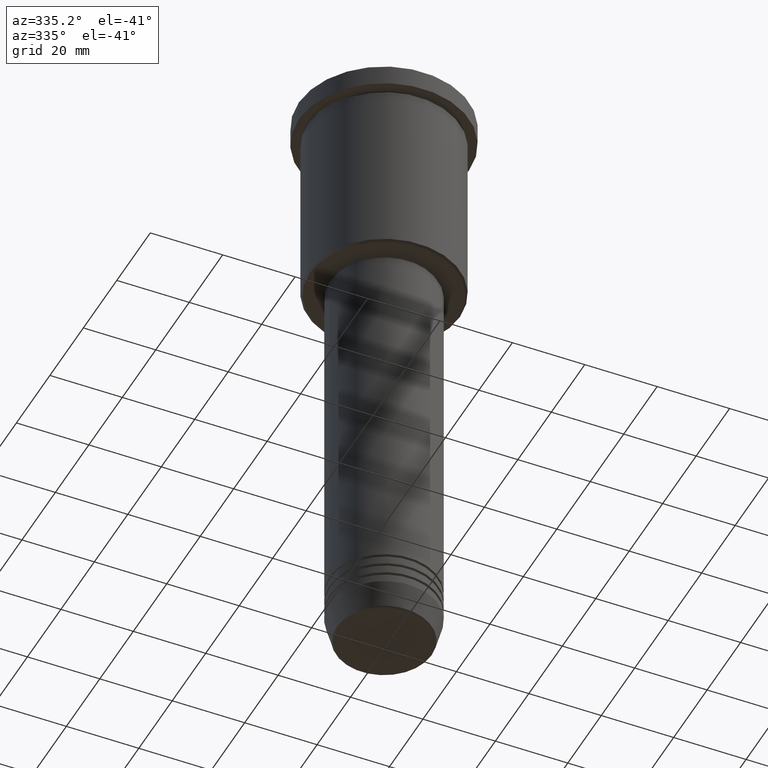
[diagram: clean part render]
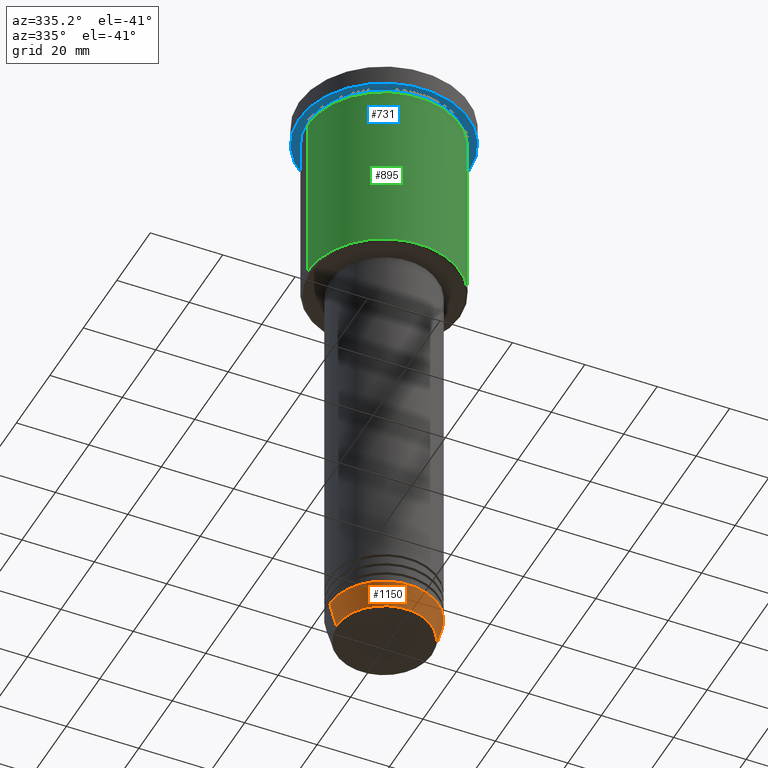
[diagram: same view with three faces highlighted in distinct colors, each labeled with its STEP entity id]
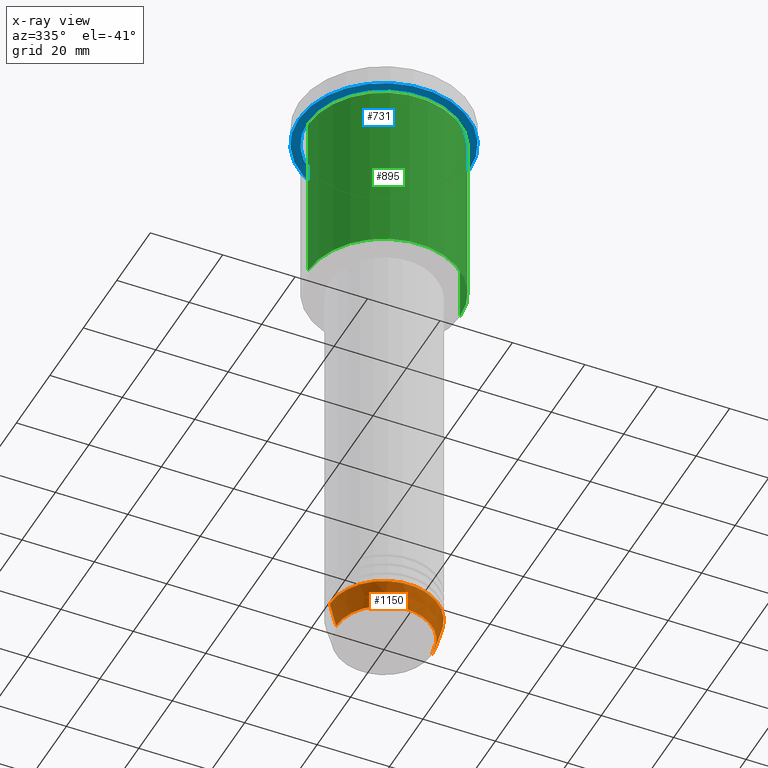
[diagram: x-ray of the same camera — body ghosted, the three highlighted faces saturated]
A machine part, auxiliary view with three faces highlighted in distinct colors.
The next image is the same camera in x-ray (body ghosted, the three faces saturated) — at least one of them is partly hidden behind the body in this view.
Their STEP definitions:

[orange] entity #1150 — the highlighted conical surface has half-angle 15 deg.
#76 = CARTESIAN_POINT ( 'NONE',  ( 15.00000000000000000, 0.000000000000000000, -164.0000000000000000 ) ) ;
#86 = FACE_OUTER_BOUND ( 'NONE', #392, .T. ) ;
#95 = DIRECTION ( 'NONE',  ( -0.000000000000000000, -0.000000000000000000, 1.000000000000000000 ) ) ;
#118 = DIRECTION ( 'NONE',  ( 0.2588190451025213501, 0.000000000000000000, 0.9659258262890680902 ) ) ;
#172 = CARTESIAN_POINT ( 'NONE',  ( -15.00000000000000000, 1.836970198721029589E-15, -164.0000000000000000 ) ) ;
#291 = VERTEX_POINT ( 'NONE', #346 ) ;
#297 = LINE ( 'NONE', #1031, #351 ) ;
#299 = VERTEX_POINT ( 'NONE', #172 ) ;
#316 = AXIS2_PLACEMENT_3D ( 'NONE', #908, #95, #809 ) ;
#323 = ORIENTED_EDGE ( 'NONE', *, *, #373, .F. ) ;
#346 = CARTESIAN_POINT ( 'NONE',  ( 13.22365507213719305, 0.000000000000000000, -170.6294095225512422 ) ) ;
#351 = VECTOR ( 'NONE', #118, 1000.000000000000000 ) ;
#358 = EDGE_CURVE ( 'NONE', #979, #291, #1074, .T. ) ;
#369 = DIRECTION ( 'NONE',  ( -0.000000000000000000, -0.000000000000000000, 1.000000000000000000 ) ) ;
#373 = EDGE_CURVE ( 'NONE', #299, #1123, #984, .T. ) ;
#392 = EDGE_LOOP ( 'NONE', ( #456, #1003, #490, #323 ) ) ;
#394 = VECTOR ( 'NONE', #655, 1000.000000000000000 ) ;
#456 = ORIENTED_EDGE ( 'NONE', *, *, #870, .F. ) ;
#490 = ORIENTED_EDGE ( 'NONE', *, *, #516, .T. ) ;
#516 = EDGE_CURVE ( 'NONE', #291, #1123, #297, .T. ) ;
#525 = AXIS2_PLACEMENT_3D ( 'NONE', #704, #1065, #611 ) ;
#577 = CARTESIAN_POINT ( 'NONE',  ( 0.000000000000000000, 0.000000000000000000, -164.0000000000000000 ) ) ;
#599 = CARTESIAN_POINT ( 'NONE',  ( -13.22365507213719305, 1.728200442216588583E-15, -170.6294095225512422 ) ) ;
#611 = DIRECTION ( 'NONE',  ( 1.000000000000000000, 0.000000000000000000, 0.000000000000000000 ) ) ;
#651 = DIRECTION ( 'NONE',  ( 1.000000000000000000, 0.000000000000000000, 0.000000000000000000 ) ) ;
#655 = DIRECTION ( 'NONE',  ( -0.2588190451025213501, 3.169619151431772337E-17, 0.9659258262890680902 ) ) ;
#704 = CARTESIAN_POINT ( 'NONE',  ( 0.000000000000000000, 0.000000000000000000, -170.6294095225512422 ) ) ;
#794 = AXIS2_PLACEMENT_3D ( 'NONE', #577, #369, #651 ) ;
#809 = DIRECTION ( 'NONE',  ( 1.000000000000000000, 0.000000000000000000, 0.000000000000000000 ) ) ;
#834 = CONICAL_SURFACE ( 'NONE', #316, 15.00000000000000000, 0.2617993877991500740 ) ;
#870 = EDGE_CURVE ( 'NONE', #979, #299, #955, .T. ) ;
#908 = CARTESIAN_POINT ( 'NONE',  ( 0.000000000000000000, 0.000000000000000000, -164.0000000000000000 ) ) ;
#955 = LINE ( 'NONE', #1115, #394 ) ;
#979 = VERTEX_POINT ( 'NONE', #599 ) ;
#984 = CIRCLE ( 'NONE', #794, 15.00000000000000000 ) ;
#1003 = ORIENTED_EDGE ( 'NONE', *, *, #358, .T. ) ;
#1031 = CARTESIAN_POINT ( 'NONE',  ( 15.00000000000000000, 0.000000000000000000, -164.0000000000000000 ) ) ;
#1065 = DIRECTION ( 'NONE',  ( -0.000000000000000000, -0.000000000000000000, 1.000000000000000000 ) ) ;
#1074 = CIRCLE ( 'NONE', #525, 13.22365507213719305 ) ;
#1115 = CARTESIAN_POINT ( 'NONE',  ( -15.00000000000000000, 1.836970198721029589E-15, -164.0000000000000000 ) ) ;
#1123 = VERTEX_POINT ( 'NONE', #76 ) ;
#1150 = ADVANCED_FACE ( 'NONE', ( #86 ), #834, .T. ) ;

[blue] entity #731 — the highlighted planar face has unit normal (0, 0, -1).
#28 = EDGE_CURVE ( 'NONE', #867, #502, #252, .T. ) ;
#31 = AXIS2_PLACEMENT_3D ( 'NONE', #1071, #157, #528 ) ;
#48 = CIRCLE ( 'NONE', #1097, 21.00000000000000000 ) ;
#132 = VERTEX_POINT ( 'NONE', #686 ) ;
#150 = DIRECTION ( 'NONE',  ( 1.000000000000000000, 0.000000000000000000, 0.000000000000000000 ) ) ;
#157 = DIRECTION ( 'NONE',  ( -0.000000000000000000, -0.000000000000000000, 1.000000000000000000 ) ) ;
#160 = AXIS2_PLACEMENT_3D ( 'NONE', #261, #266, #637 ) ;
#168 = ORIENTED_EDGE ( 'NONE', *, *, #861, .F. ) ;
#236 = CIRCLE ( 'NONE', #698, 23.50000000000000000 ) ;
#252 = CIRCLE ( 'NONE', #756, 23.50000000000000000 ) ;
#261 = CARTESIAN_POINT ( 'NONE',  ( 0.000000000000000000, 23.50000000000000000, -5.999999999999994671 ) ) ;
#266 = DIRECTION ( 'NONE',  ( 0.000000000000000000, 0.000000000000000000, -1.000000000000000000 ) ) ;
#328 = EDGE_LOOP ( 'NONE', ( #882, #859 ) ) ;
#363 = FACE_BOUND ( 'NONE', #328, .T. ) ;
#367 = DIRECTION ( 'NONE',  ( -1.000000000000000000, 0.000000000000000000, 0.000000000000000000 ) ) ;
#447 = PLANE ( 'NONE',  #160 ) ;
#475 = DIRECTION ( 'NONE',  ( -0.000000000000000000, -0.000000000000000000, 1.000000000000000000 ) ) ;
#502 = VERTEX_POINT ( 'NONE', #1026 ) ;
#524 = CARTESIAN_POINT ( 'NONE',  ( 21.00000000000000000, 2.571758278209441661E-15, -5.999999999999994671 ) ) ;
#528 = DIRECTION ( 'NONE',  ( -1.000000000000000000, 0.000000000000000000, 0.000000000000000000 ) ) ;
#545 = CIRCLE ( 'NONE', #31, 21.00000000000000000 ) ;
#637 = DIRECTION ( 'NONE',  ( -1.000000000000000000, 0.000000000000000000, -0.000000000000000000 ) ) ;
#660 = EDGE_CURVE ( 'NONE', #1028, #132, #545, .T. ) ;
#682 = EDGE_CURVE ( 'NONE', #132, #1028, #48, .T. ) ;
#686 = CARTESIAN_POINT ( 'NONE',  ( -21.00000000000000000, 0.000000000000000000, -5.999999999999994671 ) ) ;
#698 = AXIS2_PLACEMENT_3D ( 'NONE', #1124, #475, #755 ) ;
#731 = ADVANCED_FACE ( 'NONE', ( #363, #825 ), #447, .T. ) ;
#755 = DIRECTION ( 'NONE',  ( 1.000000000000000000, 0.000000000000000000, 0.000000000000000000 ) ) ;
#756 = AXIS2_PLACEMENT_3D ( 'NONE', #863, #872, #150 ) ;
#825 = FACE_OUTER_BOUND ( 'NONE', #940, .T. ) ;
#859 = ORIENTED_EDGE ( 'NONE', *, *, #660, .T. ) ;
#861 = EDGE_CURVE ( 'NONE', #502, #867, #236, .T. ) ;
#863 = CARTESIAN_POINT ( 'NONE',  ( 0.000000000000000000, 0.000000000000000000, -5.999999999999994671 ) ) ;
#867 = VERTEX_POINT ( 'NONE', #936 ) ;
#872 = DIRECTION ( 'NONE',  ( -0.000000000000000000, -0.000000000000000000, 1.000000000000000000 ) ) ;
#882 = ORIENTED_EDGE ( 'NONE', *, *, #682, .T. ) ;
#917 = CARTESIAN_POINT ( 'NONE',  ( 0.000000000000000000, 0.000000000000000000, -5.999999999999994671 ) ) ;
#936 = CARTESIAN_POINT ( 'NONE',  ( -23.50000000000000000, 2.877919977996280320E-15, -5.999999999999994671 ) ) ;
#940 = EDGE_LOOP ( 'NONE', ( #168, #1141 ) ) ;
#1006 = DIRECTION ( 'NONE',  ( -0.000000000000000000, -0.000000000000000000, 1.000000000000000000 ) ) ;
#1026 = CARTESIAN_POINT ( 'NONE',  ( 23.50000000000000000, 0.000000000000000000, -5.999999999999994671 ) ) ;
#1028 = VERTEX_POINT ( 'NONE', #524 ) ;
#1071 = CARTESIAN_POINT ( 'NONE',  ( 0.000000000000000000, 0.000000000000000000, -5.999999999999994671 ) ) ;
#1097 = AXIS2_PLACEMENT_3D ( 'NONE', #917, #1006, #367 ) ;
#1124 = CARTESIAN_POINT ( 'NONE',  ( 0.000000000000000000, 0.000000000000000000, -5.999999999999994671 ) ) ;
#1141 = ORIENTED_EDGE ( 'NONE', *, *, #28, .F. ) ;

[green] entity #895 — the highlighted cylindrical surface (partial cylindrical patch) has radius 21 mm, axis along (-0, -0, 1).
#121 = AXIS2_PLACEMENT_3D ( 'NONE', #981, #495, #976 ) ;
#175 = EDGE_CURVE ( 'NONE', #777, #519, #1049, .T. ) ;
#189 = DIRECTION ( 'NONE',  ( -1.000000000000000000, 0.000000000000000000, 0.000000000000000000 ) ) ;
#223 = CIRCLE ( 'NONE', #701, 21.00000000000000000 ) ;
#243 = ORIENTED_EDGE ( 'NONE', *, *, #591, .F. ) ;
#314 = FACE_OUTER_BOUND ( 'NONE', #569, .T. ) ;
#397 = CARTESIAN_POINT ( 'NONE',  ( -21.00000000000000000, 2.571758278209441661E-15, -55.49999999999996447 ) ) ;
#479 = VERTEX_POINT ( 'NONE', #557 ) ;
#495 = DIRECTION ( 'NONE',  ( -0.000000000000000000, -0.000000000000000000, 1.000000000000000000 ) ) ;
#510 = VECTOR ( 'NONE', #711, 1000.000000000000000 ) ;
#512 = CARTESIAN_POINT ( 'NONE',  ( 21.00000000000000000, 0.000000000000000000, 0.000000000000000000 ) ) ;
#519 = VERTEX_POINT ( 'NONE', #1035 ) ;
#557 = CARTESIAN_POINT ( 'NONE',  ( -21.00000000000000000, 2.571758278209441661E-15, -6.999999999999994671 ) ) ;
#569 = EDGE_LOOP ( 'NONE', ( #764, #796, #847, #243 ) ) ;
#576 = DIRECTION ( 'NONE',  ( -0.000000000000000000, -0.000000000000000000, 1.000000000000000000 ) ) ;
#591 = EDGE_CURVE ( 'NONE', #479, #519, #906, .T. ) ;
#617 = CARTESIAN_POINT ( 'NONE',  ( 0.000000000000000000, 0.000000000000000000, -55.49999999999996447 ) ) ;
#701 = AXIS2_PLACEMENT_3D ( 'NONE', #617, #724, #189 ) ;
#711 = DIRECTION ( 'NONE',  ( -0.000000000000000000, -0.000000000000000000, 1.000000000000000000 ) ) ;
#724 = DIRECTION ( 'NONE',  ( -0.000000000000000000, -0.000000000000000000, 1.000000000000000000 ) ) ;
#764 = ORIENTED_EDGE ( 'NONE', *, *, #1140, .F. ) ;
#777 = VERTEX_POINT ( 'NONE', #921 ) ;
#796 = ORIENTED_EDGE ( 'NONE', *, *, #1052, .T. ) ;
#842 = VERTEX_POINT ( 'NONE', #397 ) ;
#847 = ORIENTED_EDGE ( 'NONE', *, *, #175, .T. ) ;
#876 = DIRECTION ( 'NONE',  ( -0.000000000000000000, -0.000000000000000000, 1.000000000000000000 ) ) ;
#895 = ADVANCED_FACE ( 'NONE', ( #314 ), #1016, .T. ) ;
#902 = CARTESIAN_POINT ( 'NONE',  ( -21.00000000000000000, 2.571758278209441661E-15, 0.000000000000000000 ) ) ;
#906 = CIRCLE ( 'NONE', #121, 21.00000000000000000 ) ;
#921 = CARTESIAN_POINT ( 'NONE',  ( 21.00000000000000000, 0.000000000000000000, -55.49999999999996447 ) ) ;
#927 = CARTESIAN_POINT ( 'NONE',  ( 0.000000000000000000, 0.000000000000000000, 0.000000000000000000 ) ) ;
#976 = DIRECTION ( 'NONE',  ( 1.000000000000000000, 0.000000000000000000, 0.000000000000000000 ) ) ;
#981 = CARTESIAN_POINT ( 'NONE',  ( 0.000000000000000000, 0.000000000000000000, -6.999999999999994671 ) ) ;
#988 = AXIS2_PLACEMENT_3D ( 'NONE', #927, #576, #1110 ) ;
#1016 = CYLINDRICAL_SURFACE ( 'NONE', #988, 21.00000000000000000 ) ;
#1035 = CARTESIAN_POINT ( 'NONE',  ( 21.00000000000000000, 0.000000000000000000, -6.999999999999994671 ) ) ;
#1049 = LINE ( 'NONE', #512, #1135 ) ;
#1052 = EDGE_CURVE ( 'NONE', #842, #777, #223, .T. ) ;
#1110 = DIRECTION ( 'NONE',  ( 1.000000000000000000, 0.000000000000000000, 0.000000000000000000 ) ) ;
#1135 = VECTOR ( 'NONE', #876, 1000.000000000000000 ) ;
#1140 = EDGE_CURVE ( 'NONE', #842, #479, #1180, .T. ) ;
#1180 = LINE ( 'NONE', #902, #510 ) ;